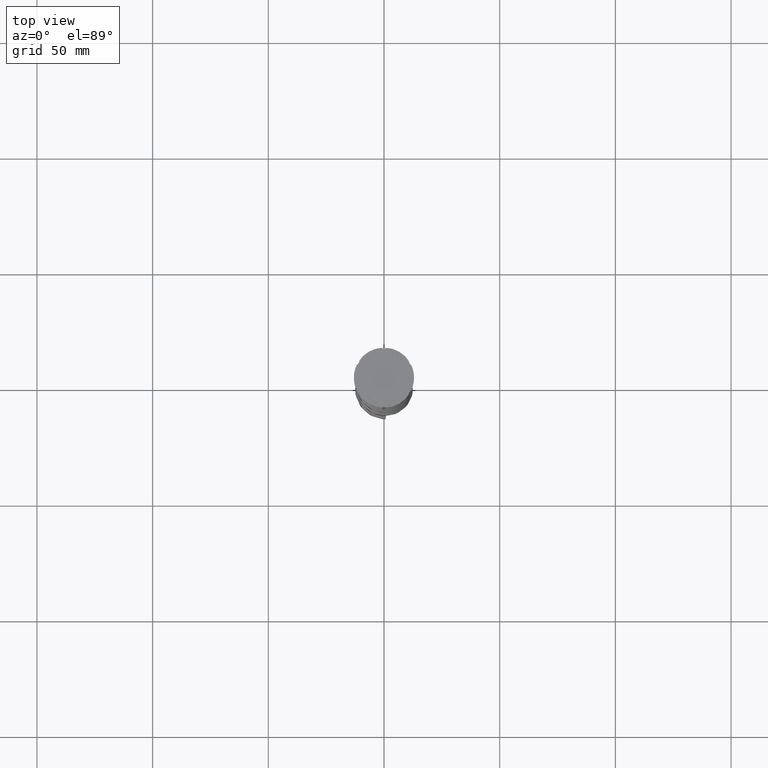
[diagram: clean part render]
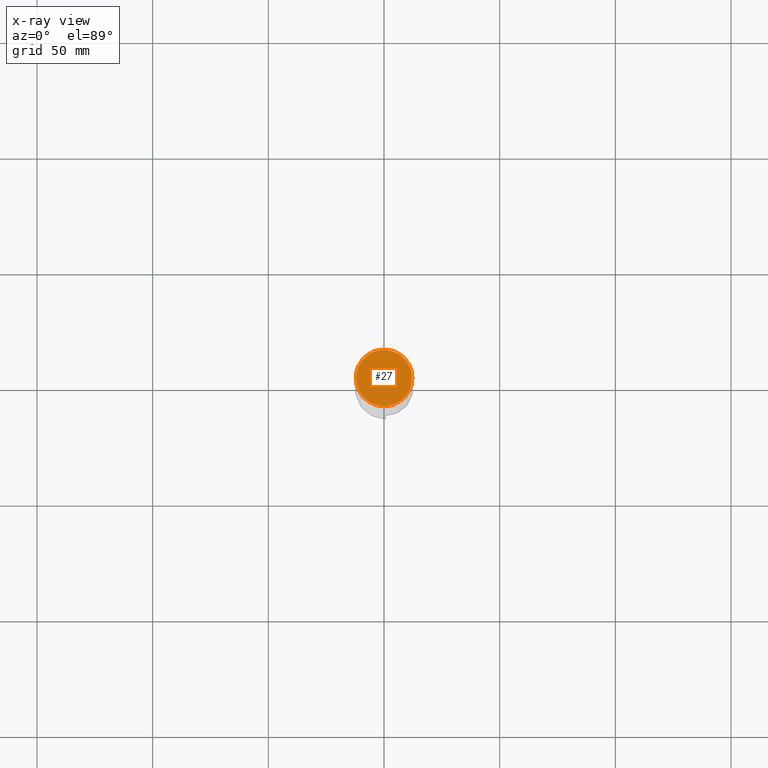
[diagram: x-ray — body ghosted, one internal face saturated and labeled with its STEP entity id]
A machine part, top view, then the same camera in x-ray: the body is ghosted and one INTERNAL B-rep face — a face not visible from any outside direction — is saturated and labeled: STEP entity #27.
In plain terms, the highlighted planar face has unit normal (0, 0, -1).
Its self-contained STEP definition (entity closure, byte-faithful):
#5 = VERTEX_POINT ( 'NONE', #4138 ) ;
#27 = ADVANCED_FACE ( 'NONE', ( #360 ), #3200, .F. ) ;
#94 = DIRECTION ( 'NONE',  ( -1.000000000000000000, 0.000000000000000000, -0.000000000000000000 ) ) ;
#360 = FACE_OUTER_BOUND ( 'NONE', #1557, .T. ) ;
#408 = CARTESIAN_POINT ( 'NONE',  ( 0.000000000000000000, 0.000000000000000000, -12.00000000000000000 ) ) ;
#681 = CARTESIAN_POINT ( 'NONE',  ( -12.20000000000000639, 0.000000000000000000, -12.00000000000000000 ) ) ;
#691 = DIRECTION ( 'NONE',  ( -0.000000000000000000, -0.000000000000000000, 1.000000000000000000 ) ) ;
#852 = CARTESIAN_POINT ( 'NONE',  ( 0.000000000000000000, 0.000000000000000000, -12.00000000000000000 ) ) ;
#878 = CIRCLE ( 'NONE', #1462, 12.20000000000000639 ) ;
#1089 = DIRECTION ( 'NONE',  ( 0.000000000000000000, 0.000000000000000000, -1.000000000000000000 ) ) ;
#1181 = EDGE_CURVE ( 'NONE', #2498, #5, #4167, .T. ) ;
#1462 = AXIS2_PLACEMENT_3D ( 'NONE', #3187, #691, #3498 ) ;
#1557 = EDGE_LOOP ( 'NONE', ( #3393, #2047 ) ) ;
#1635 = EDGE_CURVE ( 'NONE', #5, #2498, #878, .T. ) ;
#2047 = ORIENTED_EDGE ( 'NONE', *, *, #1635, .T. ) ;
#2240 = DIRECTION ( 'NONE',  ( -0.000000000000000000, -0.000000000000000000, 1.000000000000000000 ) ) ;
#2498 = VERTEX_POINT ( 'NONE', #681 ) ;
#3187 = CARTESIAN_POINT ( 'NONE',  ( 0.000000000000000000, 0.000000000000000000, -12.00000000000000000 ) ) ;
#3200 = PLANE ( 'NONE',  #4014 ) ;
#3393 = ORIENTED_EDGE ( 'NONE', *, *, #1181, .T. ) ;
#3498 = DIRECTION ( 'NONE',  ( -1.000000000000000000, 0.000000000000000000, 0.000000000000000000 ) ) ;
#4014 = AXIS2_PLACEMENT_3D ( 'NONE', #408, #1089, #94 ) ;
#4138 = CARTESIAN_POINT ( 'NONE',  ( 12.20000000000000639, 1.512438796946981880E-15, -12.00000000000000000 ) ) ;
#4167 = CIRCLE ( 'NONE', #4451, 12.20000000000000639 ) ;
#4347 = DIRECTION ( 'NONE',  ( -1.000000000000000000, 0.000000000000000000, 0.000000000000000000 ) ) ;
#4451 = AXIS2_PLACEMENT_3D ( 'NONE', #852, #2240, #4347 ) ;